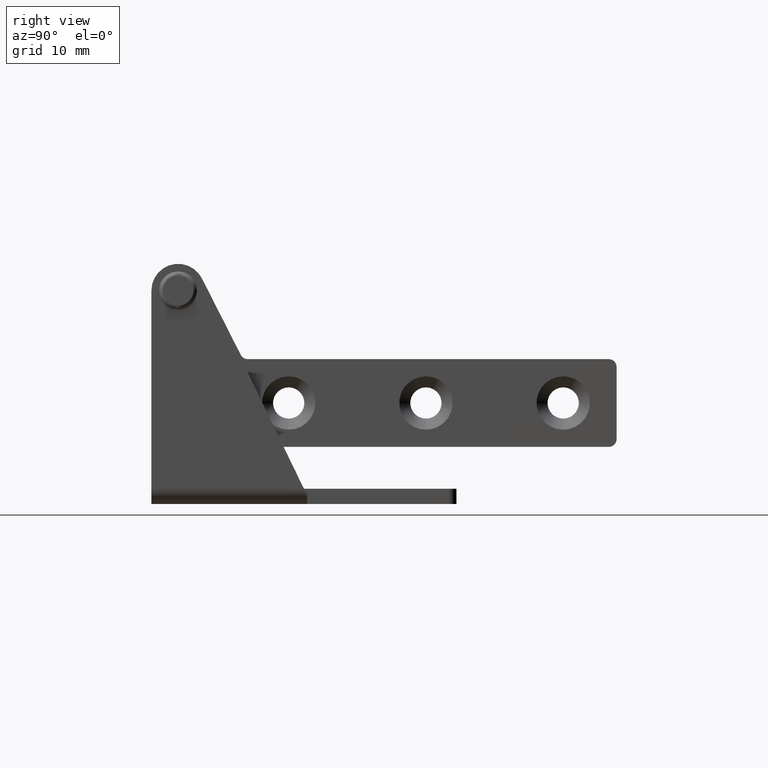
[diagram: clean part render]
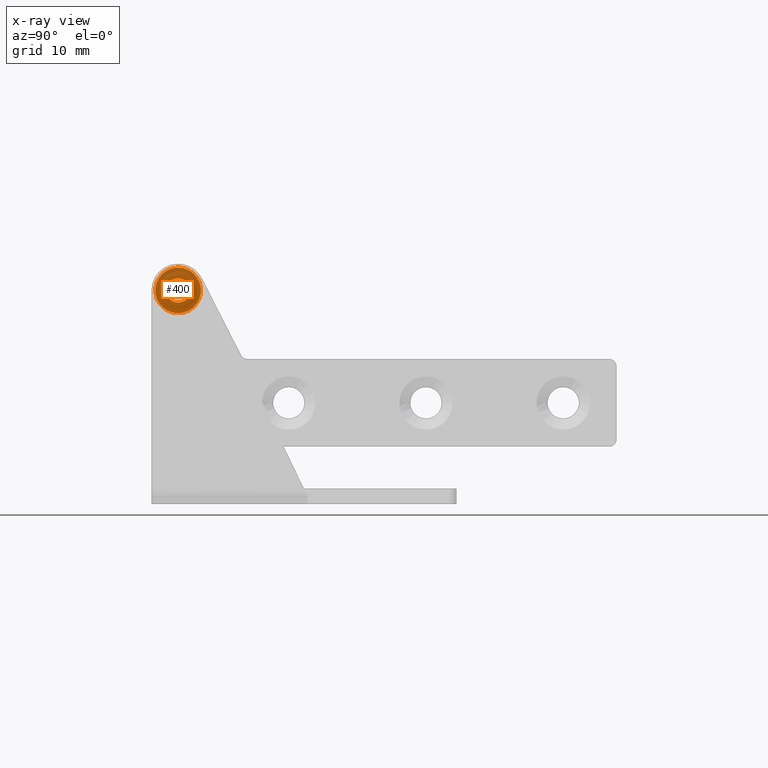
[diagram: x-ray — body ghosted, one internal face saturated and labeled with its STEP entity id]
A machine part, right view, then the same camera in x-ray: the body is ghosted and one INTERNAL B-rep face — a face not visible from any outside direction — is saturated and labeled: STEP entity #400.
In plain terms, the highlighted planar face has unit normal (-1, 0, 0).
Its self-contained STEP definition (entity closure, byte-faithful):
#400=ADVANCED_FACE('',(#1156,#1157),#1155,.T.);
#1155=PLANE('',#2468);
#1156=FACE_OUTER_BOUND('',#2469,.T.);
#1157=FACE_BOUND('',#2470,.T.);
#2465=CARTESIAN_POINT('',(-6.23538290725E+000,5.00000000000E-001,-6.90000000000E+000));
#2466=DIRECTION('',(-0.00000000000E+000,1.00000000000E+000,0.00000000000E+000));
#2467=DIRECTION('',(0.00000000000E+000,0.00000000000E+000,1.00000000000E+000));
#2468=AXIS2_PLACEMENT_3D('',#2465,#2466,#2467);
#2469=EDGE_LOOP('',(#3364,#3365));
#2470=EDGE_LOOP('',(#3366,#3367));
#3364=ORIENTED_EDGE('',*,*,#3901,.F.);
#3365=ORIENTED_EDGE('',*,*,#3902,.F.);
#3366=ORIENTED_EDGE('',*,*,#3903,.T.);
#3367=ORIENTED_EDGE('',*,*,#3904,.T.);
#3901=EDGE_CURVE('',#5170,#5171,#5172,.T.);
#3902=EDGE_CURVE('',#5171,#5170,#5178,.T.);
#3903=EDGE_CURVE('',#5184,#5185,#5186,.T.);
#3904=EDGE_CURVE('',#5185,#5184,#5192,.T.);
#5170=VERTEX_POINT('',#7057);
#5171=VERTEX_POINT('',#7058);
#5172=CIRCLE('',#7062,3.00000000000E+000);
#5178=CIRCLE('',#7066,3.00000000000E+000);
#5184=VERTEX_POINT('',#7067);
#5185=VERTEX_POINT('',#7068);
#5186=CIRCLE('',#7072,1.60000000000E+000);
#5192=CIRCLE('',#7076,1.60000000000E+000);
#7057=CARTESIAN_POINT('',(5.92118946467E-016,5.00000000000E-001,-3.00000000000E+000));
#7058=CARTESIAN_POINT('',(0.00000000000E+000,5.00000000000E-001,3.00000000000E+000));
#7059=CARTESIAN_POINT('',(0.00000000000E+000,5.00000000000E-001,0.00000000000E+000));
#7060=DIRECTION('',(0.00000000000E+000,-1.00000000000E+000,0.00000000000E+000));
#7061=DIRECTION('',(-1.22460635382E-016,0.00000000000E+000,1.00000000000E+000));
#7062=AXIS2_PLACEMENT_3D('',#7059,#7060,#7061);
#7063=CARTESIAN_POINT('',(0.00000000000E+000,5.00000000000E-001,0.00000000000E+000));
#7064=DIRECTION('',(0.00000000000E+000,-1.00000000000E+000,0.00000000000E+000));
#7065=DIRECTION('',(-1.22460635382E-016,0.00000000000E+000,1.00000000000E+000));
#7066=AXIS2_PLACEMENT_3D('',#7063,#7064,#7065);
#7067=CARTESIAN_POINT('',(0.00000000000E+000,5.00000000000E-001,1.60000000000E+000));
#7068=CARTESIAN_POINT('',(2.22044604925E-016,5.00000000000E-001,-1.60000000000E+000));
#7069=CARTESIAN_POINT('',(0.00000000000E+000,5.00000000000E-001,0.00000000000E+000));
#7070=DIRECTION('',(0.00000000000E+000,-1.00000000000E+000,0.00000000000E+000));
#7071=DIRECTION('',(-1.22460635382E-016,0.00000000000E+000,1.00000000000E+000));
#7072=AXIS2_PLACEMENT_3D('',#7069,#7070,#7071);
#7073=CARTESIAN_POINT('',(0.00000000000E+000,5.00000000000E-001,0.00000000000E+000));
#7074=DIRECTION('',(0.00000000000E+000,-1.00000000000E+000,0.00000000000E+000));
#7075=DIRECTION('',(-1.22460635382E-016,0.00000000000E+000,1.00000000000E+000));
#7076=AXIS2_PLACEMENT_3D('',#7073,#7074,#7075);